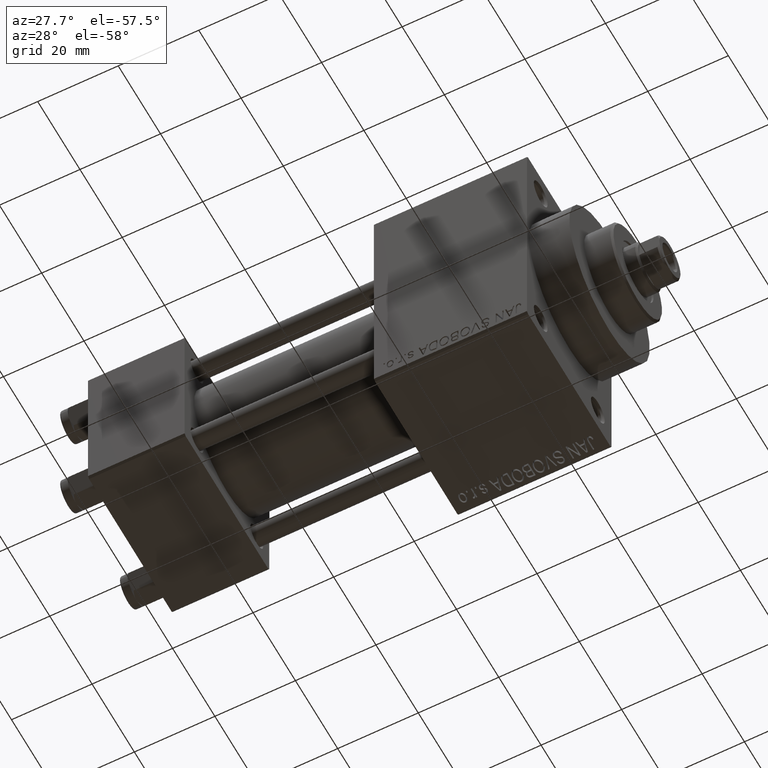
[diagram: clean part render]
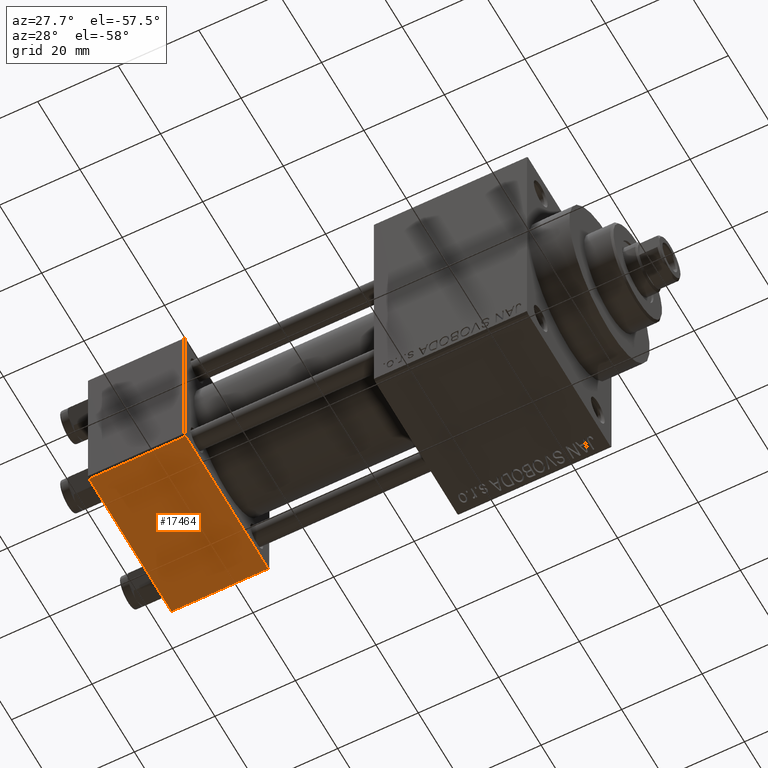
[diagram: same view with one face highlighted and labeled with its STEP entity id]
A machine part, auxiliary view. The second image highlights one B-rep face of the part: STEP entity #17464.
In plain terms, the highlighted planar face has unit normal (0, -0, -1).
Its self-contained STEP definition (entity closure, byte-faithful):
#1006 = VERTEX_POINT ( 'NONE', #22655 ) ;
#4540 = DIRECTION ( 'NONE',  ( -1.000000000000000000, 0.000000000000000000, 0.000000000000000000 ) ) ;
#6754 = VECTOR ( 'NONE', #4540, 1000.000000000000000 ) ;
#10422 = DIRECTION ( 'NONE',  ( 0.000000000000000000, 1.000000000000000000, -1.734723475976806848E-16 ) ) ;
#11253 = LINE ( 'NONE', #28620, #37734 ) ;
#13061 = CARTESIAN_POINT ( 'NONE',  ( 24.00000000000000000, 19.50000000000000711, -20.00000000000000711 ) ) ;
#13189 = ORIENTED_EDGE ( 'NONE', *, *, #26130, .T. ) ;
#13435 = CARTESIAN_POINT ( 'NONE',  ( 24.00000000000000000, 20.00000000000000000, -20.00000000000000711 ) ) ;
#14147 = DIRECTION ( 'NONE',  ( 0.000000000000000000, -1.000000000000000000, 1.734723475976807094E-16 ) ) ;
#17464 = ADVANCED_FACE ( 'NONE', ( #38753 ), #39220, .T. ) ;
#17792 = DIRECTION ( 'NONE',  ( 0.000000000000000000, -1.734723475976806848E-16, -1.000000000000000000 ) ) ;
#17954 = LINE ( 'NONE', #13435, #25569 ) ;
#18591 = LINE ( 'NONE', #36922, #6754 ) ;
#20581 = EDGE_CURVE ( 'NONE', #25157, #1006, #17954, .T. ) ;
#22655 = CARTESIAN_POINT ( 'NONE',  ( 24.00000000000000000, -19.50000000000000711, -20.00000000000000000 ) ) ;
#23721 = ORIENTED_EDGE ( 'NONE', *, *, #26736, .T. ) ;
#24239 = CARTESIAN_POINT ( 'NONE',  ( 0.000000000000000000, 19.50000000000000711, -20.00000000000000711 ) ) ;
#24847 = VECTOR ( 'NONE', #42590, 1000.000000000000000 ) ;
#25157 = VERTEX_POINT ( 'NONE', #29465 ) ;
#25569 = VECTOR ( 'NONE', #14147, 1000.000000000000000 ) ;
#26130 = EDGE_CURVE ( 'NONE', #36669, #25157, #27814, .T. ) ;
#26736 = EDGE_CURVE ( 'NONE', #1006, #37252, #18591, .T. ) ;
#27521 = ORIENTED_EDGE ( 'NONE', *, *, #30658, .F. ) ;
#27763 = ORIENTED_EDGE ( 'NONE', *, *, #20581, .T. ) ;
#27814 = LINE ( 'NONE', #13061, #24847 ) ;
#28382 = DIRECTION ( 'NONE',  ( 0.000000000000000000, -1.000000000000000000, 1.734723475976807094E-16 ) ) ;
#28620 = CARTESIAN_POINT ( 'NONE',  ( 0.000000000000000000, 20.00000000000000000, -20.00000000000000711 ) ) ;
#29465 = CARTESIAN_POINT ( 'NONE',  ( 24.00000000000000000, 19.50000000000000711, -20.00000000000000711 ) ) ;
#30658 = EDGE_CURVE ( 'NONE', #36669, #37252, #11253, .T. ) ;
#31616 = CARTESIAN_POINT ( 'NONE',  ( 24.00000000000000000, 20.00000000000000000, -20.00000000000000711 ) ) ;
#32938 = CARTESIAN_POINT ( 'NONE',  ( 0.000000000000000000, -19.50000000000000711, -20.00000000000000000 ) ) ;
#36669 = VERTEX_POINT ( 'NONE', #24239 ) ;
#36922 = CARTESIAN_POINT ( 'NONE',  ( 0.000000000000000000, -19.50000000000000711, -20.00000000000000000 ) ) ;
#37252 = VERTEX_POINT ( 'NONE', #32938 ) ;
#37734 = VECTOR ( 'NONE', #28382, 1000.000000000000000 ) ;
#38753 = FACE_OUTER_BOUND ( 'NONE', #41880, .T. ) ;
#39220 = PLANE ( 'NONE',  #43733 ) ;
#41880 = EDGE_LOOP ( 'NONE', ( #27521, #13189, #27763, #23721 ) ) ;
#42590 = DIRECTION ( 'NONE',  ( 1.000000000000000000, 0.000000000000000000, 0.000000000000000000 ) ) ;
#43733 = AXIS2_PLACEMENT_3D ( 'NONE', #31616, #17792, #10422 ) ;